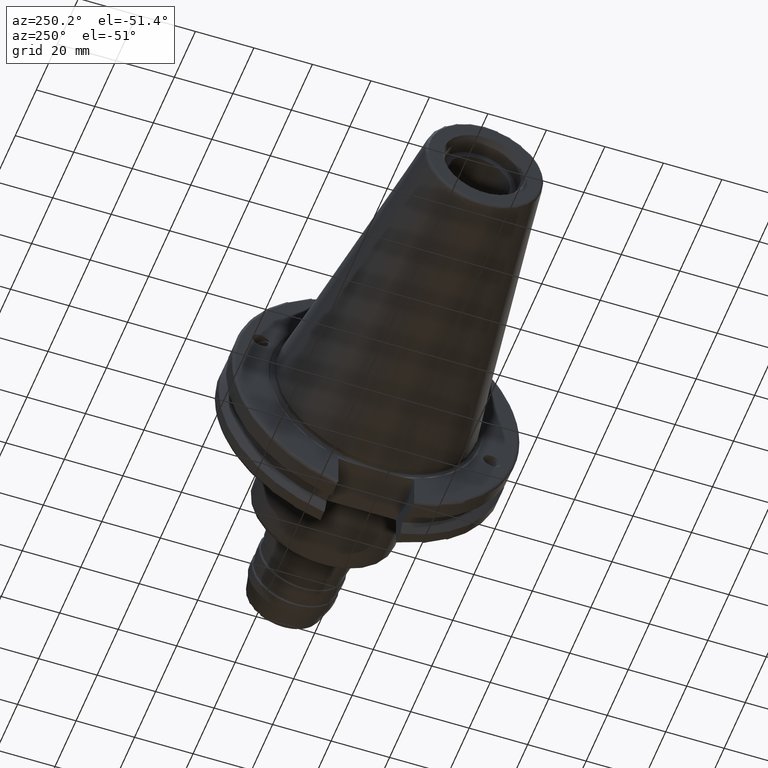
[diagram: clean part render]
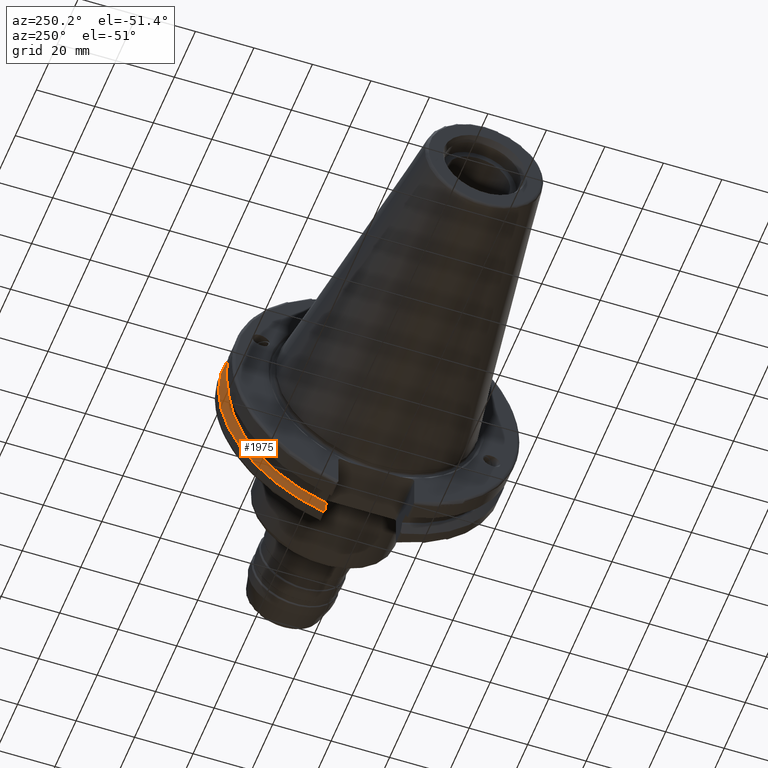
[diagram: same view with one face highlighted and labeled with its STEP entity id]
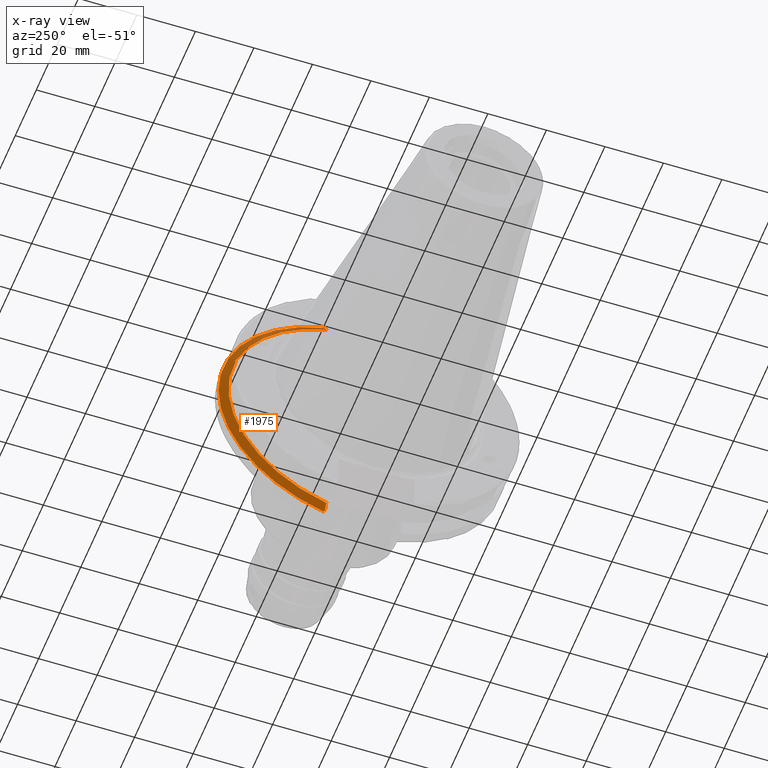
[diagram: x-ray of the same camera — body ghosted, the highlighted face saturated]
A machine part, auxiliary view. The second image highlights one B-rep face of the part: STEP entity #1975.
The next image is the same camera in x-ray: the body ghosted, the highlighted face saturated — about 3% of this face is hidden behind the body in this view.
In plain terms, the highlighted conical surface has half-angle 60 deg.
Its self-contained STEP definition (entity closure, byte-faithful):
#23=(
BOUNDED_CURVE()
B_SPLINE_CURVE(2,(#3655,#3656,#3657),.UNSPECIFIED.,.F.,.F.)
B_SPLINE_CURVE_WITH_KNOTS((3,3),(0.325260944932418,0.390084992222202),
 .UNSPECIFIED.)
CURVE()
GEOMETRIC_REPRESENTATION_ITEM()
RATIONAL_B_SPLINE_CURVE((1.00019140645959,1.00011477674843,1.))
REPRESENTATION_ITEM('')
);
#24=(
BOUNDED_CURVE()
B_SPLINE_CURVE(2,(#3672,#3673,#3674),.UNSPECIFIED.,.F.,.F.)
B_SPLINE_CURVE_WITH_KNOTS((3,3),(0.0558332664502613,0.331657177124503),
 .UNSPECIFIED.)
CURVE()
GEOMETRIC_REPRESENTATION_ITEM()
RATIONAL_B_SPLINE_CURVE((1.00012873637141,1.00038235575535,1.))
REPRESENTATION_ITEM('')
);
#31=(
BOUNDED_CURVE()
B_SPLINE_CURVE(2,(#3872,#3873,#3874),.UNSPECIFIED.,.F.,.F.)
B_SPLINE_CURVE_WITH_KNOTS((3,3),(0.,0.275823910675342),.UNSPECIFIED.)
CURVE()
GEOMETRIC_REPRESENTATION_ITEM()
RATIONAL_B_SPLINE_CURVE((1.,1.00038235575444,1.0001287363711))
REPRESENTATION_ITEM('')
);
#32=(
BOUNDED_CURVE()
B_SPLINE_CURVE(2,(#3889,#3890,#3891),.UNSPECIFIED.,.F.,.F.)
B_SPLINE_CURVE_WITH_KNOTS((3,3),(0.,0.0648240472896818),.UNSPECIFIED.)
CURVE()
GEOMETRIC_REPRESENTATION_ITEM()
RATIONAL_B_SPLINE_CURVE((1.,1.00011477674878,1.00019140646017))
REPRESENTATION_ITEM('')
);
#54=B_SPLINE_CURVE_WITH_KNOTS('',3,(#3494,#3495,#3496,#3497,#3498,#3499,
#3500,#3501),.UNSPECIFIED.,.F.,.F.,(4,2,2,4),(0.42671286835872,0.441644498666906,
0.480313313223129,0.518982127779353),.UNSPECIFIED.);
#58=B_SPLINE_CURVE_WITH_KNOTS('',3,(#3556,#3557,#3558,#3559,#3560,#3561,
#3562,#3563),.UNSPECIFIED.,.F.,.F.,(4,2,2,4),(0.518982127779353,0.557650942335577,
0.596319756891801,0.611251387199985),.UNSPECIFIED.);
#146=CONICAL_SURFACE('',#2229,47.8172386482472,1.0471975511966);
#489=FACE_OUTER_BOUND('',#614,.T.);
#614=EDGE_LOOP('',(#1786,#1787,#1788,#1789,#1790,#1791,#1792,#1793,#1794));
#732=CIRCLE('',#2171,46.4219772964944);
#750=CIRCLE('',#2222,49.2125);
#753=CIRCLE('',#2230,46.4219772964944);
#883=VERTEX_POINT('',#3491);
#884=VERTEX_POINT('',#3493);
#891=VERTEX_POINT('',#3554);
#900=VERTEX_POINT('',#3596);
#910=VERTEX_POINT('',#3652);
#911=VERTEX_POINT('',#3654);
#952=VERTEX_POINT('',#3869);
#953=VERTEX_POINT('',#3871);
#956=VERTEX_POINT('',#3887);
#1129=EDGE_CURVE('',#884,#883,#54,.T.);
#1137=EDGE_CURVE('',#883,#891,#58,.T.);
#1149=EDGE_CURVE('',#900,#884,#732,.T.);
#1165=EDGE_CURVE('',#910,#911,#23,.T.);
#1171=EDGE_CURVE('',#910,#900,#24,.T.);
#1232=EDGE_CURVE('',#953,#952,#31,.T.);
#1240=EDGE_CURVE('',#956,#952,#32,.T.);
#1241=EDGE_CURVE('',#911,#956,#750,.T.);
#1247=EDGE_CURVE('',#891,#953,#753,.T.);
#1786=ORIENTED_EDGE('',*,*,#1129,.T.);
#1787=ORIENTED_EDGE('',*,*,#1137,.T.);
#1788=ORIENTED_EDGE('',*,*,#1247,.T.);
#1789=ORIENTED_EDGE('',*,*,#1232,.T.);
#1790=ORIENTED_EDGE('',*,*,#1240,.F.);
#1791=ORIENTED_EDGE('',*,*,#1241,.F.);
#1792=ORIENTED_EDGE('',*,*,#1165,.F.);
#1793=ORIENTED_EDGE('',*,*,#1171,.T.);
#1794=ORIENTED_EDGE('',*,*,#1149,.T.);
#1975=ADVANCED_FACE('',(#489),#146,.T.);
#2171=AXIS2_PLACEMENT_3D('',#3597,#2626,#2627);
#2222=AXIS2_PLACEMENT_3D('',#3893,#2775,#2776);
#2229=AXIS2_PLACEMENT_3D('',#3906,#2792,#2793);
#2230=AXIS2_PLACEMENT_3D('',#3907,#2794,#2795);
#2626=DIRECTION('center_axis',(1.,0.,0.));
#2627=DIRECTION('ref_axis',(0.,0.,-1.));
#2775=DIRECTION('center_axis',(1.,0.,0.));
#2776=DIRECTION('ref_axis',(0.,0.,-1.));
#2792=DIRECTION('center_axis',(1.,0.,0.));
#2793=DIRECTION('ref_axis',(0.,1.,0.));
#2794=DIRECTION('center_axis',(1.,0.,0.));
#2795=DIRECTION('ref_axis',(0.,0.,-1.));
#3491=CARTESIAN_POINT('',(13.2341,43.923494649906,15.9868446375166));
#3493=CARTESIAN_POINT('',(13.0491,43.9096390749305,15.0646464421033));
#3494=CARTESIAN_POINT('Ctrl Pts',(13.0491,43.9096390749305,15.0646464421033));
#3495=CARTESIAN_POINT('Ctrl Pts',(13.0660815609661,43.9250360001461,15.1104047527575));
#3496=CARTESIAN_POINT('Ctrl Pts',(13.0821132459668,43.9385582852181,15.1564111356409));
#3497=CARTESIAN_POINT('Ctrl Pts',(13.1358132615496,43.9797830409459,15.3217566390709));
#3498=CARTESIAN_POINT('Ctrl Pts',(13.1719838933644,43.9989016655819,15.4570249042868));
#3499=CARTESIAN_POINT('Ctrl Pts',(13.2212913174802,43.9931221605126,15.7289849146254));
#3500=CARTESIAN_POINT('Ctrl Pts',(13.2341,43.9675796948952,15.8657219718732));
#3501=CARTESIAN_POINT('Ctrl Pts',(13.2341,43.923494649906,15.9868446375166));
#3554=CARTESIAN_POINT('',(13.0491,43.3201030900029,16.6843832486479));
#3556=CARTESIAN_POINT('Ctrl Pts',(13.2341,43.923494649906,15.9868446375166));
#3557=CARTESIAN_POINT('Ctrl Pts',(13.2341,43.8794096049169,16.10796730316));
#3558=CARTESIAN_POINT('Ctrl Pts',(13.2212913174802,43.8110833825828,16.2291323464528));
#3559=CARTESIAN_POINT('Ctrl Pts',(13.1719838933644,43.6406982153492,16.441180795372));
#3560=CARTESIAN_POINT('Ctrl Pts',(13.1358132615496,43.5391037343221,16.5325130832406));
#3561=CARTESIAN_POINT('Ctrl Pts',(13.0821132459668,43.4012416983557,16.6326763251437));
#3562=CARTESIAN_POINT('Ctrl Pts',(13.0660815609661,43.3613106941341,16.6592273018006));
#3563=CARTESIAN_POINT('Ctrl Pts',(13.0491,43.3201030900029,16.6843832486479));
#3596=CARTESIAN_POINT('',(13.0491,12.95,-44.5791147973605));
#3597=CARTESIAN_POINT('Origin',(13.0491,0.,0.));
#3652=CARTESIAN_POINT('',(14.3818103943757,12.95,-46.9780755322918));
#3654=CARTESIAN_POINT('',(14.6602090340487,13.4317035994433,-47.3440544806494));
#3655=CARTESIAN_POINT('Ctrl Pts',(14.3818103943757,12.95,-46.9780755322918));
#3656=CARTESIAN_POINT('Ctrl Pts',(14.5199310333618,13.1896660169966,-47.1601640966265));
#3657=CARTESIAN_POINT('Ctrl Pts',(14.6602090340487,13.4317035994433,-47.3440544806494));
#3672=CARTESIAN_POINT('Ctrl Pts',(14.3818103943757,12.95,-46.9780755322918));
#3673=CARTESIAN_POINT('Ctrl Pts',(13.6979955094591,12.95,-45.7494966802465));
#3674=CARTESIAN_POINT('Ctrl Pts',(13.0491,12.95,-44.5791147973605));
#3869=CARTESIAN_POINT('',(14.3818103943757,12.95,46.9780755322918));
#3871=CARTESIAN_POINT('',(13.0491,12.95,44.5791147973605));
#3872=CARTESIAN_POINT('Ctrl Pts',(13.0491,12.95,44.5791147973605));
#3873=CARTESIAN_POINT('Ctrl Pts',(13.6979955094449,12.95,45.749496680221));
#3874=CARTESIAN_POINT('Ctrl Pts',(14.3818103943757,12.95,46.9780755322918));
#3887=CARTESIAN_POINT('',(14.6602090340487,13.4317035994433,47.3440544806494));
#3889=CARTESIAN_POINT('Ctrl Pts',(14.6602090340487,13.4317035994433,47.3440544806494));
#3890=CARTESIAN_POINT('Ctrl Pts',(14.5199310333617,13.1896660169965,47.1601640966263));
#3891=CARTESIAN_POINT('Ctrl Pts',(14.3818103943757,12.95,46.9780755322918));
#3893=CARTESIAN_POINT('Origin',(14.6602090340487,0.,0.));
#3906=CARTESIAN_POINT('Origin',(13.8546545170244,0.,0.));
#3907=CARTESIAN_POINT('Origin',(13.0491,0.,0.));